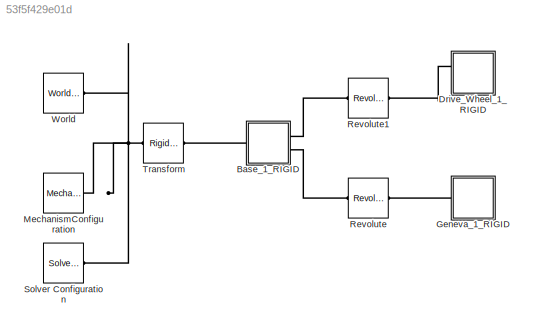
MODEL slx_53f5f429e01d
KIND model
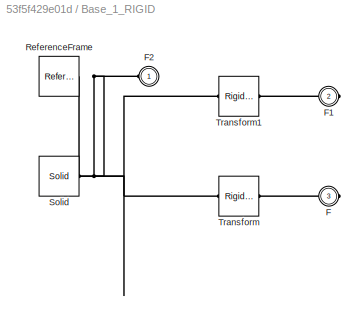
BLOCK [SubSystem] Base_1_RIGID
  Ports = [0, 0, 0, 0, 0, 1, 2]
  RequestExecContextInheritance = off
BLOCK [PMIOPort] Base_1_RIGID/F
  Port = 3
  Side = Right
BLOCK [PMIOPort] Base_1_RIGID/F1
  Port = 2
  Side = Right
BLOCK [PMIOPort] Base_1_RIGID/F2
  Port = 1
  Side = Left
BLOCK [Reference] Base_1_RIGID/ReferenceFrame  REF=sm_lib/Frames and
Transforms/Reference
Frame
  BlockFunction = simmechanics.library.frames_transforms.reference_frame
  ClassName = ReferenceFrame
  Ports = [0, 0, 0, 0, 0, 0, 1]
  SourceBlock = sm_lib/Frames and\nTransforms/Reference\nFrame
  SourceType = Reference\nFrame
BLOCK [Reference] Base_1_RIGID/Solid  REF=sm_lib/Body Elements/Solid
  BlockFunction = simmechanics.library.body_elements.solid
  BrickDimensionUnits = m
  BrickDimensions = [1 1 1]
  CenterOfMass = [0.22415415704528135 0 -24.782168314450626]
  CenterOfMassUnits = mm
  ClassName = Solid
  CylinderLength = 1
  CylinderLengthUnits = m
  CylinderRadius = 1
  CylinderRadiusUnits = m
  Density = 1000
  DensityBased = on
  DensityUnits = kg/(m^3)
  EllipsoidRadii = [1 1 1]
  EllipsoidRadiiUnits = m
  ExtGeomFileName = Base_Default_sldprt.STL
  ExtGeomFileType = STL
  ExtGeomFileUnits = mm
  ExtrusionCrossSection = [1 1; -1 1; -1 -1; 1 -1]
  ExtrusionCrossSectionUnits = m
  ExtrusionLength = 1
  ExtrusionLengthUnits = m
  GeometryShape = FromFile
  GraphicAmbientColor = [0.15 0.15 0.15 1.0]
  GraphicDiffuseColor = [0.82745098039215681 0.82745098039215681 0.81960784313725488]
  GraphicEmissiveColor = [0.0 0.0 0.0 1.0]
  GraphicOpacity = 1
  GraphicShininess = 75
  GraphicSpecularColor = [0.5 0.5 0.5 1.0]
  GraphicType = FromGeometry
  GraphicVisPropType = SimpleVisualProperties
  InertiaType = Custom
  MarkerShape = Sphere
  MarkerSize = 10
  MarkerSizeUnits = m
  Mass = 5.6121441650895836
  MassUnits = kg
  MomentsOfInertia = [57246.923822174664 131168.16755878026 187513.90774897448]
  MomentsOfInertiaUnits = kg*mm^2
  PolygonNumSides = 3
  PolygonOuterRadius = 1
  PolygonOuterRadiusUnits = m
  Ports = [0, 0, 0, 0, 0, 0, 1]
  ProductsOfInertia = [0 -24.879239071091789 0]
  ProductsOfInertiaUnits = kg*mm^2
  RectangleSize = [1 1]
  RectangleSizeUnits = m
  RevolutionAngle = 180
  RevolutionAngleUnits = deg
  RevolutionCrossSection = [1 1; 1 -1; 2 -1; 2 1]
  RevolutionCrossSectionUnits = m
  RevolutionExtent = Full
  SourceBlock = sm_lib/Body Elements/Solid
  SourceType = Solid
  SphereRadius = 1
  SphereRadiusUnits = m
BLOCK [Reference] Base_1_RIGID/Transform  REF=sm_lib/Frames and
Transforms/Rigid
Transform
  BaseAlignAxisA = +Y
  BaseAlignAxisB = +Z
  BlockFunction = simmechanics.library.frames_transforms.rigid_transform
  ClassName = RigidTransform
  FollAlignAxisA = +X
  FollAlignAxisB = +Y
  Ports = [0, 0, 0, 0, 0, 1, 1]
  RotationAngle = 0
  RotationAngleUnits = rad
  RotationArbitraryAxis = [0 0 0]
  RotationMethod = ArbitraryAxis
  RotationStandardAxis = +Z
  SourceBlock = sm_lib/Frames and\nTransforms/Rigid\nTransform
  SourceType = Rigid\nTransform
  TranslationCartesianOffset = [100 0 0]
  TranslationLengthUnit = mm
  TranslationMethod = Cartesian
  TranslationROffset = 0
  TranslationROffsetUnits = m
  TranslationStandardAxis = +Z
  TranslationStandardOffset = 0
  TranslationThetaOffset = 0
  TranslationThetaOffsetUnits = deg
  TranslationZOffset = 0
  TranslationZOffsetUnits = m
BLOCK [Reference] Base_1_RIGID/Transform1  REF=sm_lib/Frames and
Transforms/Rigid
Transform
  BaseAlignAxisA = +Y
  BaseAlignAxisB = +Z
  BlockFunction = simmechanics.library.frames_transforms.rigid_transform
  ClassName = RigidTransform
  FollAlignAxisA = +X
  FollAlignAxisB = +Y
  Ports = [0, 0, 0, 0, 0, 1, 1]
  RotationAngle = 3.1415926535897931
  RotationAngleUnits = rad
  RotationArbitraryAxis = [1 0 0]
  RotationMethod = ArbitraryAxis
  RotationStandardAxis = +Z
  SourceBlock = sm_lib/Frames and\nTransforms/Rigid\nTransform
  SourceType = Rigid\nTransform
  TranslationCartesianOffset = [-99.999999999999986 0 57.42640687119286]
  TranslationLengthUnit = mm
  TranslationMethod = Cartesian
  TranslationROffset = 0
  TranslationROffsetUnits = m
  TranslationStandardAxis = +Z
  TranslationStandardOffset = 0
  TranslationThetaOffset = 0
  TranslationThetaOffsetUnits = deg
  TranslationZOffset = 0
  TranslationZOffsetUnits = m
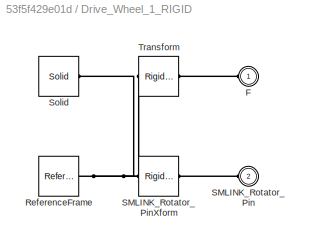
BLOCK [SubSystem] Drive_Wheel_1_RIGID
  Ports = [0, 0, 0, 0, 0, 2]
  RequestExecContextInheritance = off
BLOCK [PMIOPort] Drive_Wheel_1_RIGID/F
  Port = 1
  Side = Left
BLOCK [Reference] Drive_Wheel_1_RIGID/ReferenceFrame  REF=sm_lib/Frames and
Transforms/Reference
Frame
  BlockFunction = simmechanics.library.frames_transforms.reference_frame
  ClassName = ReferenceFrame
  Ports = [0, 0, 0, 0, 0, 0, 1]
  SourceBlock = sm_lib/Frames and\nTransforms/Reference\nFrame
  SourceType = Reference\nFrame
BLOCK [PMIOPort] Drive_Wheel_1_RIGID/SMLINK_Rotator_Pin
  Port = 2
  Side = Left
BLOCK [Reference] Drive_Wheel_1_RIGID/SMLINK_Rotator_PinXform  REF=sm_lib/Frames and
Transforms/Rigid
Transform
  BaseAlignAxisA = +Y
  BaseAlignAxisB = +Z
  BlockFunction = simmechanics.library.frames_transforms.rigid_transform
  ClassName = RigidTransform
  FollAlignAxisA = +X
  FollAlignAxisB = +Y
  Ports = [0, 0, 0, 0, 0, 1, 1]
  RotationAngle = 0
  RotationAngleUnits = deg
  RotationArbitraryAxis = [0 0 1]
  RotationMethod = None
  RotationStandardAxis = +Z
  SourceBlock = sm_lib/Frames and\nTransforms/Rigid\nTransform
  SourceType = Rigid\nTransform
  TranslationCartesianOffset = [0 99.999999999999943 1.0000000000000009]
  TranslationLengthUnit = mm
  TranslationMethod = Cartesian
  TranslationROffset = 0
  TranslationROffsetUnits = m
  TranslationStandardAxis = +Z
  TranslationStandardOffset = 0
  TranslationThetaOffset = 0
  TranslationThetaOffsetUnits = deg
  TranslationZOffset = 0
  TranslationZOffsetUnits = m
BLOCK [Reference] Drive_Wheel_1_RIGID/Solid  REF=sm_lib/Body Elements/Solid
  BlockFunction = simmechanics.library.body_elements.solid
  BrickDimensionUnits = m
  BrickDimensions = [1 1 1]
  CenterOfMass = [-103.32572655678197 -3.3257265567819814 0.56035000006051983]
  CenterOfMassUnits = mm
  ClassName = Solid
  CylinderLength = 1
  CylinderLengthUnits = m
  CylinderRadius = 1
  CylinderRadiusUnits = m
  Density = 1000
  DensityBased = on
  DensityUnits = kg/(m^3)
  EllipsoidRadii = [1 1 1]
  EllipsoidRadiiUnits = m
  ExtGeomFileName = Drive_Wheel_Default_sldprt.STL
  ExtGeomFileType = STL
  ExtGeomFileUnits = mm
  ExtrusionCrossSection = [1 1; -1 1; -1 -1; 1 -1]
  ExtrusionCrossSectionUnits = m
  ExtrusionLength = 1
  ExtrusionLengthUnits = m
  GeometryShape = FromFile
  GraphicAmbientColor = [0.15 0.15 0.15 1.0]
  GraphicDiffuseColor = [0.20000000000000001 0.40000000000000002 1]
  GraphicEmissiveColor = [0.0 0.0 0.0 1.0]
  GraphicOpacity = 1
  GraphicShininess = 75
  GraphicSpecularColor = [0.5 0.5 0.5 1.0]
  GraphicType = FromGeometry
  GraphicVisPropType = SimpleVisualProperties
  InertiaType = Custom
  MarkerShape = Sphere
  MarkerSize = 10
  MarkerSizeUnits = m
  Mass = 1.1459440199505517
  MassUnits = kg
  MomentsOfInertia = [5063.1142307875289 5063.1142307875298 10008.151794093599]
  MomentsOfInertiaUnits = kg*mm^2
  PolygonNumSides = 3
  PolygonOuterRadius = 1
  PolygonOuterRadiusUnits = m
  Ports = [0, 0, 0, 0, 0, 0, 1]
  ProductsOfInertia = [46.956086417341879 46.956086417341901 41.94861289102812]
  ProductsOfInertiaUnits = kg*mm^2
  RectangleSize = [1 1]
  RectangleSizeUnits = m
  RevolutionAngle = 180
  RevolutionAngleUnits = deg
  RevolutionCrossSection = [1 1; 1 -1; 2 -1; 2 1]
  RevolutionCrossSectionUnits = m
  RevolutionExtent = Full
  SourceBlock = sm_lib/Body Elements/Solid
  SourceType = Solid
  SphereRadius = 1
  SphereRadiusUnits = m
BLOCK [Reference] Drive_Wheel_1_RIGID/Transform  REF=sm_lib/Frames and
Transforms/Rigid
Transform
  BaseAlignAxisA = +Y
  BaseAlignAxisB = +Z
  BlockFunction = simmechanics.library.frames_transforms.rigid_transform
  ClassName = RigidTransform
  FollAlignAxisA = +X
  FollAlignAxisB = +Y
  Ports = [0, 0, 0, 0, 0, 1, 1]
  RotationAngle = 3.1415926535897931
  RotationAngleUnits = rad
  RotationArbitraryAxis = [-1 5.9163189700902024e-33 -6.6609835156154749e-17]
  RotationMethod = ArbitraryAxis
  RotationStandardAxis = +Z
  SourceBlock = sm_lib/Frames and\nTransforms/Rigid\nTransform
  SourceType = Rigid\nTransform
  TranslationCartesianOffset = [-100.00000000000026 2.1316282072803006e-14 57.426406871192782]
  TranslationLengthUnit = mm
  TranslationMethod = Cartesian
  TranslationROffset = 0
  TranslationROffsetUnits = m
  TranslationStandardAxis = +Z
  TranslationStandardOffset = 0
  TranslationThetaOffset = 0
  TranslationThetaOffsetUnits = deg
  TranslationZOffset = 0
  TranslationZOffsetUnits = m
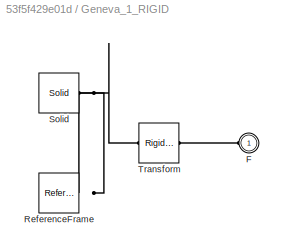
BLOCK [SubSystem] Geneva_1_RIGID
  Ports = [0, 0, 0, 0, 0, 1]
  RequestExecContextInheritance = off
BLOCK [PMIOPort] Geneva_1_RIGID/F
  Port = 1
  Side = Left
BLOCK [Reference] Geneva_1_RIGID/ReferenceFrame  REF=sm_lib/Frames and
Transforms/Reference
Frame
  BlockFunction = simmechanics.library.frames_transforms.reference_frame
  ClassName = ReferenceFrame
  Ports = [0, 0, 0, 0, 0, 0, 1]
  SourceBlock = sm_lib/Frames and\nTransforms/Reference\nFrame
  SourceType = Reference\nFrame
BLOCK [Reference] Geneva_1_RIGID/Solid  REF=sm_lib/Body Elements/Solid
  BlockFunction = simmechanics.library.body_elements.solid
  BrickDimensionUnits = m
  BrickDimensions = [1 1 1]
  CenterOfMass = [100.00000000000023 1.1564451014440063e-12 5.0000000000000009]
  CenterOfMassUnits = mm
  ClassName = Solid
  CylinderLength = 1
  CylinderLengthUnits = m
  CylinderRadius = 1
  CylinderRadiusUnits = m
  Density = 1000
  DensityBased = on
  DensityUnits = kg/(m^3)
  EllipsoidRadii = [1 1 1]
  EllipsoidRadiiUnits = m
  ExtGeomFileName = Geneva_Default_sldprt.STL
  ExtGeomFileType = STL
  ExtGeomFileUnits = mm
  ExtrusionCrossSection = [1 1; -1 1; -1 -1; 1 -1]
  ExtrusionCrossSectionUnits = m
  ExtrusionLength = 1
  ExtrusionLengthUnits = m
  GeometryShape = FromFile
  GraphicAmbientColor = [0.15 0.15 0.15 1.0]
  GraphicDiffuseColor = [1 0.40000000000000002 0]
  GraphicEmissiveColor = [0.0 0.0 0.0 1.0]
  GraphicOpacity = 1
  GraphicShininess = 75
  GraphicSpecularColor = [0.5 0.5 0.5 1.0]
  GraphicType = FromGeometry
  GraphicVisPropType = SimpleVisualProperties
  InertiaType = Custom
  MarkerShape = Sphere
  MarkerSize = 10
  MarkerSizeUnits = m
  Mass = 0.24105441419713447
  MassUnits = kg
  MomentsOfInertia = [803.62795532691052 803.62795532691234 1603.261580672231]
  MomentsOfInertiaUnits = kg*mm^2
  PolygonNumSides = 3
  PolygonOuterRadius = 1
  PolygonOuterRadiusUnits = m
  Ports = [0, 0, 0, 0, 0, 0, 1]
  ProductsOfInertia = [0 0 0]
  ProductsOfInertiaUnits = kg*mm^2
  RectangleSize = [1 1]
  RectangleSizeUnits = m
  RevolutionAngle = 180
  RevolutionAngleUnits = deg
  RevolutionCrossSection = [1 1; 1 -1; 2 -1; 2 1]
  RevolutionCrossSectionUnits = m
  RevolutionExtent = Full
  SourceBlock = sm_lib/Body Elements/Solid
  SourceType = Solid
  SphereRadius = 1
  SphereRadiusUnits = m
BLOCK [Reference] Geneva_1_RIGID/Transform  REF=sm_lib/Frames and
Transforms/Rigid
Transform
  BaseAlignAxisA = +Y
  BaseAlignAxisB = +Z
  BlockFunction = simmechanics.library.frames_transforms.rigid_transform
  ClassName = RigidTransform
  FollAlignAxisA = +X
  FollAlignAxisB = +Y
  Ports = [0, 0, 0, 0, 0, 1, 1]
  RotationAngle = 0
  RotationAngleUnits = rad
  RotationArbitraryAxis = [0 0 0]
  RotationMethod = ArbitraryAxis
  RotationStandardAxis = +Z
  SourceBlock = sm_lib/Frames and\nTransforms/Rigid\nTransform
  SourceType = Rigid\nTransform
  TranslationCartesianOffset = [99.999999999999261 -2.4158453015843406e-13 -1.4210854715202004e-14]
  TranslationLengthUnit = mm
  TranslationMethod = Cartesian
  TranslationROffset = 0
  TranslationROffsetUnits = m
  TranslationStandardAxis = +Z
  TranslationStandardOffset = 0
  TranslationThetaOffset = 0
  TranslationThetaOffsetUnits = deg
  TranslationZOffset = 0
  TranslationZOffsetUnits = m
BLOCK [Reference] MechanismConfiguration  REF=sm_lib/Utilities/Mechanism
Configuration
  BlockFunction = simmechanics.library.utilities.mechanism_configuration
  ClassName = MechanismConfiguration
  GravityUnits = m/s^2
  GravityVector = [0 -9.81 0]
  LinearizationDelta = 0.001
  Ports = [0, 0, 0, 0, 0, 0, 1]
  SourceBlock = sm_lib/Utilities/Mechanism\nConfiguration
  SourceType = Mechanism\nConfiguration
  UniformGravity = Constant
BLOCK [Reference] Revolute  REF=sm_lib/Joints/Revolute Joint
  BlockFunction = simmechanics.library.joints.revolute_joint
  ClassName = RevoluteJoint
  CompositeWrenchDir = FollowerOnBase
  CompositeWrenchFrame = BaseFrame
  DampingCoefficient = 0
  DampingCoefficientUnits = m*s*N/rad
  EquilibriumPosition = 0
  EquilibriumPositionUnits = rad
  MotionActuationMode = ComputedMotion
  Ports = [0, 0, 0, 0, 0, 1, 1]
  PositionTargetPriority = Low
  PositionTargetSpecify = on
  PositionTargetValue = 90.000000000003197
  PositionTargetValueUnits = deg
  SenseAcceleration = off
  SenseConstraintForce = off
  SenseConstraintForceX = off
  SenseConstraintForceY = off
  SenseConstraintForceZ = off
  SenseConstraintTorque = off
  SenseConstraintTorqueX = off
  SenseConstraintTorqueY = off
  SenseConstraintTorqueZ = off
  SensePosition = off
  SenseTorqueForce = off
  SenseTotalForce = off
  SenseTotalForceX = off
  SenseTotalForceY = off
  SenseTotalForceZ = off
  SenseTotalTorque = off
  SenseTotalTorqueX = off
  SenseTotalTorqueY = off
  SenseTotalTorqueZ = off
  SenseVelocity = off
  SourceBlock = sm_lib/Joints/Revolute Joint
  SourceType = Revolute Joint
  SpringStiffness = 0
  SpringStiffnessUnits = m*N/rad
  TorqueActuationMode = NoTorque
  VelocityTargetPriority = High
  VelocityTargetSpecify = off
  VelocityTargetValue = 0
  VelocityTargetValueUnits = deg/s
BLOCK [Reference] Revolute1  REF=sm_lib/Joints/Revolute Joint
  BlockFunction = simmechanics.library.joints.revolute_joint
  ClassName = RevoluteJoint
  CompositeWrenchDir = FollowerOnBase
  CompositeWrenchFrame = BaseFrame
  DampingCoefficient = 0
  DampingCoefficientUnits = m*s*N/rad
  EquilibriumPosition = 0
  EquilibriumPositionUnits = rad
  MotionActuationMode = ComputedMotion
  Ports = [0, 0, 0, 0, 0, 1, 1]
  PositionTargetPriority = Low
  PositionTargetSpecify = on
  PositionTargetValue = 106.26478005487978
  PositionTargetValueUnits = deg
  SenseAcceleration = off
  SenseConstraintForce = off
  SenseConstraintForceX = off
  SenseConstraintForceY = off
  SenseConstraintForceZ = off
  SenseConstraintTorque = off
  SenseConstraintTorqueX = off
  SenseConstraintTorqueY = off
  SenseConstraintTorqueZ = off
  SensePosition = off
  SenseTorqueForce = off
  SenseTotalForce = off
  SenseTotalForceX = off
  SenseTotalForceY = off
  SenseTotalForceZ = off
  SenseTotalTorque = off
  SenseTotalTorqueX = off
  SenseTotalTorqueY = off
  SenseTotalTorqueZ = off
  SenseVelocity = off
  SourceBlock = sm_lib/Joints/Revolute Joint
  SourceType = Revolute Joint
  SpringStiffness = 0
  SpringStiffnessUnits = m*N/rad
  TorqueActuationMode = NoTorque
  VelocityTargetPriority = High
  VelocityTargetSpecify = off
  VelocityTargetValue = 0
  VelocityTargetValueUnits = deg/s
BLOCK [Reference] Solver Configuration  REF=nesl_utility/Solver
Configuration
  AbsTol = 1e-06
  Accelerate = off
  AutomaticFiltering = on
  DelaysMemoryBudget = 1024
  DoDC = off
  DoFixedCost = off
  EnableSwitchedLinearOptims = on
  FilteringTimeConstant = 0.001
  FrequencyDomain = off
  Harmonics = []
  LeftPortType = input
  LinearAlgebra = Sparse
  LocalSolverChoice = NE_BACKWARD_EULER_ADVANCER
  LocalSolverSampleTime = 0.001
  MaxModeIter = 2
  MaxNonlinIter = 3
  MinStep = 1e-09
  PhysicalDomain = network_engine_domain
  Ports = [0, 0, 0, 0, 0, 0, 1]
  Profile = off
  RelTol = 0.001
  ResidualTolerance = 1e-09
  RightPortType = generic
  SimulateNoise = off
  SourceBlock = nesl_utility/Solver\nConfiguration
  SourceType = Solver\nConfiguration
  SubClassName = solver
  ToWorkspace = off
  Tones = []
  UseCCode = off
  UseLocalSampling = off
  UseLocalSolver = off
BLOCK [Reference] Transform  REF=sm_lib/Frames and
Transforms/Rigid
Transform
  BaseAlignAxisA = +Y
  BaseAlignAxisB = +Z
  BlockFunction = simmechanics.library.frames_transforms.rigid_transform
  ClassName = RigidTransform
  FollAlignAxisA = +X
  FollAlignAxisB = +Y
  Ports = [0, 0, 0, 0, 0, 1, 1]
  RotationAngle = 1.5707963267948966
  RotationAngleUnits = rad
  RotationArbitraryAxis = [-1 0 0]
  RotationMethod = ArbitraryAxis
  RotationStandardAxis = +Z
  SourceBlock = sm_lib/Frames and\nTransforms/Rigid\nTransform
  SourceType = Rigid\nTransform
  TranslationCartesianOffset = [-30.994181557875464 40 -14.83110487348719]
  TranslationLengthUnit = mm
  TranslationMethod = Cartesian
  TranslationROffset = 0
  TranslationROffsetUnits = m
  TranslationStandardAxis = +Z
  TranslationStandardOffset = 0
  TranslationThetaOffset = 0
  TranslationThetaOffsetUnits = deg
  TranslationZOffset = 0
  TranslationZOffsetUnits = m
BLOCK [Reference] World  REF=sm_lib/Frames and
Transforms/World Frame
  BlockFunction = simmechanics.library.frames_transforms.world_frame
  ClassName = WorldFrame
  Ports = [0, 0, 0, 0, 0, 0, 1]
  SourceBlock = sm_lib/Frames and\nTransforms/World Frame
  SourceType = World Frame
PLINE Base_1_RIGID/F1:RConn1 -- Base_1_RIGID/Transform1:RConn1
PNET net1: Base_1_RIGID/F2:RConn1 -- Base_1_RIGID/ReferenceFrame:RConn1 -- Base_1_RIGID/Solid:RConn1 -- Base_1_RIGID/Transform1:LConn1 -- Base_1_RIGID/Transform:LConn1
PLINE Base_1_RIGID/F:RConn1 -- Base_1_RIGID/Transform:RConn1
PLINE Base_1_RIGID:LConn1 -- Transform:RConn1
PLINE Base_1_RIGID:RConn1 -- Revolute1:LConn1
PLINE Base_1_RIGID:RConn2 -- Revolute:LConn1
PLINE Drive_Wheel_1_RIGID/F:RConn1 -- Drive_Wheel_1_RIGID/Transform:RConn1
PNET net2: Drive_Wheel_1_RIGID/ReferenceFrame:RConn1 -- Drive_Wheel_1_RIGID/SMLINK_Rotator_PinXform:LConn1 -- Drive_Wheel_1_RIGID/Solid:RConn1 -- Drive_Wheel_1_RIGID/Transform:LConn1
PLINE Drive_Wheel_1_RIGID/SMLINK_Rotator_Pin:RConn1 -- Drive_Wheel_1_RIGID/SMLINK_Rotator_PinXform:RConn1
PLINE Drive_Wheel_1_RIGID:LConn1 -- Revolute1:RConn1
PLINE Geneva_1_RIGID/F:RConn1 -- Geneva_1_RIGID/Transform:RConn1
PNET net3: Geneva_1_RIGID/ReferenceFrame:RConn1 -- Geneva_1_RIGID/Solid:RConn1 -- Geneva_1_RIGID/Transform:LConn1
PLINE Geneva_1_RIGID:LConn1 -- Revolute:RConn1
PNET net4: MechanismConfiguration:RConn1 -- Solver Configuration:RConn1 -- Transform:LConn1 -- World:RConn1
note: PNET lines group multi-terminal physical nets as a canonical sorted terminal list (undirected conserving connections); 2-terminal nets keep the pairwise PLINE form
